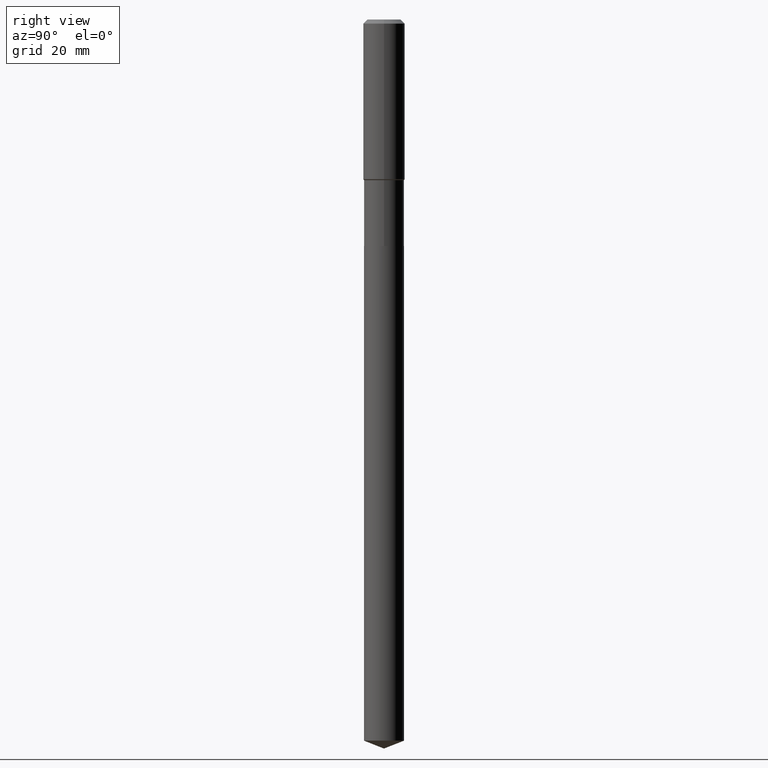
[diagram: clean part render]
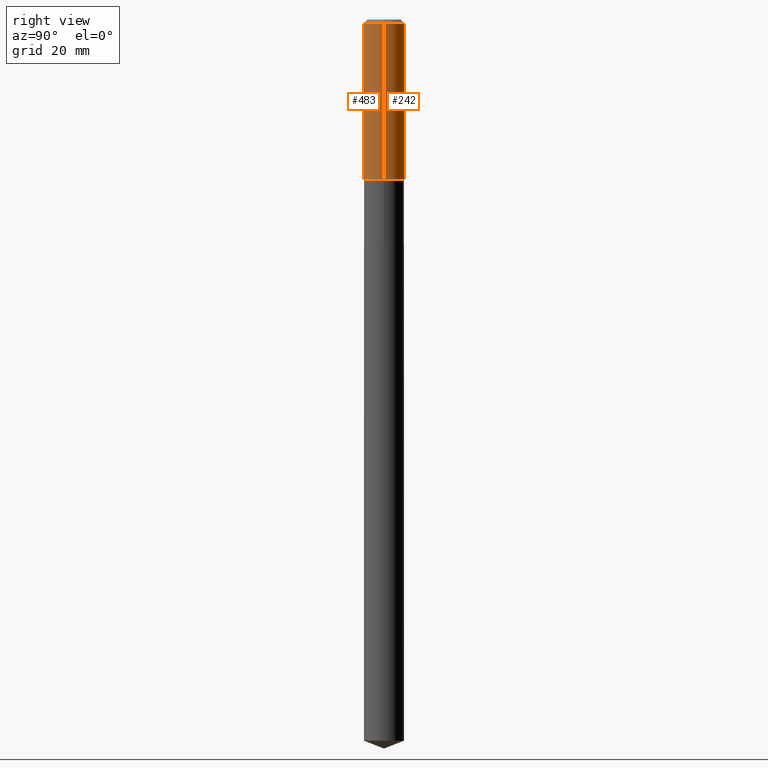
[diagram: same view with one multi-face feature highlighted, each face labeled with its STEP entity id]
A machine part, right view. The highlighted faces form ONE feature: a constant-radius fillet chain: 2 tangent blend faces with common blend radius 5.9995 mm. The faces share edges in the B-rep.
Their STEP definitions:
[1] entity #483 (Cylinder):
#4 = VERTEX_POINT ( 'NONE', #308 ) ;
#6 = VERTEX_POINT ( 'NONE', #392 ) ;
#12 = FACE_OUTER_BOUND ( 'NONE', #461, .T. ) ;
#42 = EDGE_CURVE ( 'NONE', #453, #4, #459, .T. ) ;
#57 = DIRECTION ( 'NONE',  ( -2.445468806185136597E-29, 3.491481338843145583E-15, 1.000000000000000000 ) ) ;
#70 = AXIS2_PLACEMENT_3D ( 'NONE', #207, #57, #173 ) ;
#87 = DIRECTION ( 'NONE',  ( -2.445468806185136597E-29, 3.491481338843145583E-15, 1.000000000000000000 ) ) ;
#100 = DIRECTION ( 'NONE',  ( -2.445468806185136597E-29, 3.491481338843145583E-15, 1.000000000000000000 ) ) ;
#120 = ORIENTED_EDGE ( 'NONE', *, *, #172, .T. ) ;
#151 = ORIENTED_EDGE ( 'NONE', *, *, #42, .T. ) ;
#154 = LINE ( 'NONE', #237, #403 ) ;
#167 = AXIS2_PLACEMENT_3D ( 'NONE', #462, #87, #391 ) ;
#172 = EDGE_CURVE ( 'NONE', #4, #338, #154, .T. ) ;
#173 = DIRECTION ( 'NONE',  ( 1.000000000000000000, -6.982962677686266711E-15, 0.000000000000000000 ) ) ;
#182 = CARTESIAN_POINT ( 'NONE',  ( -0.2362000000000001043, 1.678301941865357380E-15, -1.161852468318209317E-29 ) ) ;
#196 = DIRECTION ( 'NONE',  ( -2.445468806185136877E-29, 3.491481338843145188E-15, 1.000000000000000000 ) ) ;
#198 = ORIENTED_EDGE ( 'NONE', *, *, #314, .F. ) ;
#207 = CARTESIAN_POINT ( 'NONE',  ( 4.431923117449323073E-29, -6.327611630385432693E-15, -1.812300000000000022 ) ) ;
#223 = DIRECTION ( 'NONE',  ( -2.445468806185136877E-29, 3.491481338843145188E-15, 1.000000000000000000 ) ) ;
#237 = CARTESIAN_POINT ( 'NONE',  ( 0.2362000000000001043, -1.649375784469496920E-15, 1.151752954443000508E-29 ) ) ;
#245 = DIRECTION ( 'NONE',  ( 1.000000000000000000, -6.982962677686266711E-15, 4.876176775795935793E-29 ) ) ;
#255 = AXIS2_PLACEMENT_3D ( 'NONE', #431, #100, #245 ) ;
#268 = VECTOR ( 'NONE', #196, 39.37007874015748143 ) ;
#286 = CYLINDRICAL_SURFACE ( 'NONE', #255, 0.2362000000000001043 ) ;
#304 = LINE ( 'NONE', #182, #268 ) ;
#308 = CARTESIAN_POINT ( 'NONE',  ( 0.2362000000000002153, -7.976987414854930007E-15, -1.812300000000000022 ) ) ;
#314 = EDGE_CURVE ( 'NONE', #453, #6, #304, .T. ) ;
#333 = CARTESIAN_POINT ( 'NONE',  ( -0.2362000000000002153, -4.649309688520073932E-15, -1.812300000000000022 ) ) ;
#338 = VERTEX_POINT ( 'NONE', #438 ) ;
#366 = CIRCLE ( 'NONE', #167, 0.2361999999999999933 ) ;
#391 = DIRECTION ( 'NONE',  ( 1.000000000000000000, -6.982962677686266711E-15, 0.000000000000000000 ) ) ;
#392 = CARTESIAN_POINT ( 'NONE',  ( -0.2361999999999999933, -1.567972662550834226E-15, -0.04724000000000027483 ) ) ;
#403 = VECTOR ( 'NONE', #223, 39.37007874015748143 ) ;
#410 = ORIENTED_EDGE ( 'NONE', *, *, #433, .F. ) ;
#431 = CARTESIAN_POINT ( 'NONE',  ( 0.000000000000000000, 0.000000000000000000, 0.000000000000000000 ) ) ;
#433 = EDGE_CURVE ( 'NONE', #6, #338, #366, .T. ) ;
#438 = CARTESIAN_POINT ( 'NONE',  ( 0.2361999999999999933, -1.814313362916447440E-15, -0.04724000000000027483 ) ) ;
#453 = VERTEX_POINT ( 'NONE', #333 ) ;
#459 = CIRCLE ( 'NONE', #70, 0.2362000000000002153 ) ;
#461 = EDGE_LOOP ( 'NONE', ( #198, #151, #120, #410 ) ) ;
#462 = CARTESIAN_POINT ( 'NONE',  ( 1.155239464041865331E-30, -1.649375784469511612E-16, -0.04724000000000027483 ) ) ;
#483 = ADVANCED_FACE ( 'NONE', ( #12 ), #286, .T. ) ;
[2] entity #242 (Cylinder):
#4 = VERTEX_POINT ( 'NONE', #308 ) ;
#6 = VERTEX_POINT ( 'NONE', #392 ) ;
#23 = DIRECTION ( 'NONE',  ( -2.445468806185136597E-29, 3.491481338843145583E-15, 1.000000000000000000 ) ) ;
#25 = AXIS2_PLACEMENT_3D ( 'NONE', #455, #385, #452 ) ;
#31 = AXIS2_PLACEMENT_3D ( 'NONE', #327, #395, #52 ) ;
#52 = DIRECTION ( 'NONE',  ( 1.000000000000000000, -6.982962677686266711E-15, 0.000000000000000000 ) ) ;
#69 = AXIS2_PLACEMENT_3D ( 'NONE', #101, #23, #380 ) ;
#86 = ORIENTED_EDGE ( 'NONE', *, *, #275, .T. ) ;
#101 = CARTESIAN_POINT ( 'NONE',  ( 0.000000000000000000, 0.000000000000000000, 0.000000000000000000 ) ) ;
#102 = CIRCLE ( 'NONE', #25, 0.2362000000000002153 ) ;
#122 = CIRCLE ( 'NONE', #31, 0.2361999999999999933 ) ;
#154 = LINE ( 'NONE', #237, #403 ) ;
#166 = EDGE_LOOP ( 'NONE', ( #86, #413, #317, #236 ) ) ;
#172 = EDGE_CURVE ( 'NONE', #4, #338, #154, .T. ) ;
#182 = CARTESIAN_POINT ( 'NONE',  ( -0.2362000000000001043, 1.678301941865357380E-15, -1.161852468318209317E-29 ) ) ;
#186 = CYLINDRICAL_SURFACE ( 'NONE', #69, 0.2362000000000001043 ) ;
#196 = DIRECTION ( 'NONE',  ( -2.445468806185136877E-29, 3.491481338843145188E-15, 1.000000000000000000 ) ) ;
#223 = DIRECTION ( 'NONE',  ( -2.445468806185136877E-29, 3.491481338843145188E-15, 1.000000000000000000 ) ) ;
#236 = ORIENTED_EDGE ( 'NONE', *, *, #172, .F. ) ;
#237 = CARTESIAN_POINT ( 'NONE',  ( 0.2362000000000001043, -1.649375784469496920E-15, 1.151752954443000508E-29 ) ) ;
#242 = ADVANCED_FACE ( 'NONE', ( #482 ), #186, .T. ) ;
#268 = VECTOR ( 'NONE', #196, 39.37007874015748143 ) ;
#275 = EDGE_CURVE ( 'NONE', #4, #453, #102, .T. ) ;
#304 = LINE ( 'NONE', #182, #268 ) ;
#308 = CARTESIAN_POINT ( 'NONE',  ( 0.2362000000000002153, -7.976987414854930007E-15, -1.812300000000000022 ) ) ;
#314 = EDGE_CURVE ( 'NONE', #453, #6, #304, .T. ) ;
#317 = ORIENTED_EDGE ( 'NONE', *, *, #485, .F. ) ;
#327 = CARTESIAN_POINT ( 'NONE',  ( 1.155239464041865331E-30, -1.649375784469511612E-16, -0.04724000000000027483 ) ) ;
#333 = CARTESIAN_POINT ( 'NONE',  ( -0.2362000000000002153, -4.649309688520073932E-15, -1.812300000000000022 ) ) ;
#338 = VERTEX_POINT ( 'NONE', #438 ) ;
#380 = DIRECTION ( 'NONE',  ( 1.000000000000000000, -6.982962677686266711E-15, 4.876176775795935793E-29 ) ) ;
#385 = DIRECTION ( 'NONE',  ( -2.445468806185136597E-29, 3.491481338843145583E-15, 1.000000000000000000 ) ) ;
#392 = CARTESIAN_POINT ( 'NONE',  ( -0.2361999999999999933, -1.567972662550834226E-15, -0.04724000000000027483 ) ) ;
#395 = DIRECTION ( 'NONE',  ( -2.445468806185136597E-29, 3.491481338843145583E-15, 1.000000000000000000 ) ) ;
#403 = VECTOR ( 'NONE', #223, 39.37007874015748143 ) ;
#413 = ORIENTED_EDGE ( 'NONE', *, *, #314, .T. ) ;
#438 = CARTESIAN_POINT ( 'NONE',  ( 0.2361999999999999933, -1.814313362916447440E-15, -0.04724000000000027483 ) ) ;
#452 = DIRECTION ( 'NONE',  ( 1.000000000000000000, -6.982962677686266711E-15, 0.000000000000000000 ) ) ;
#453 = VERTEX_POINT ( 'NONE', #333 ) ;
#455 = CARTESIAN_POINT ( 'NONE',  ( 4.431923117449323073E-29, -6.327611630385432693E-15, -1.812300000000000022 ) ) ;
#482 = FACE_OUTER_BOUND ( 'NONE', #166, .T. ) ;
#485 = EDGE_CURVE ( 'NONE', #338, #6, #122, .T. ) ;